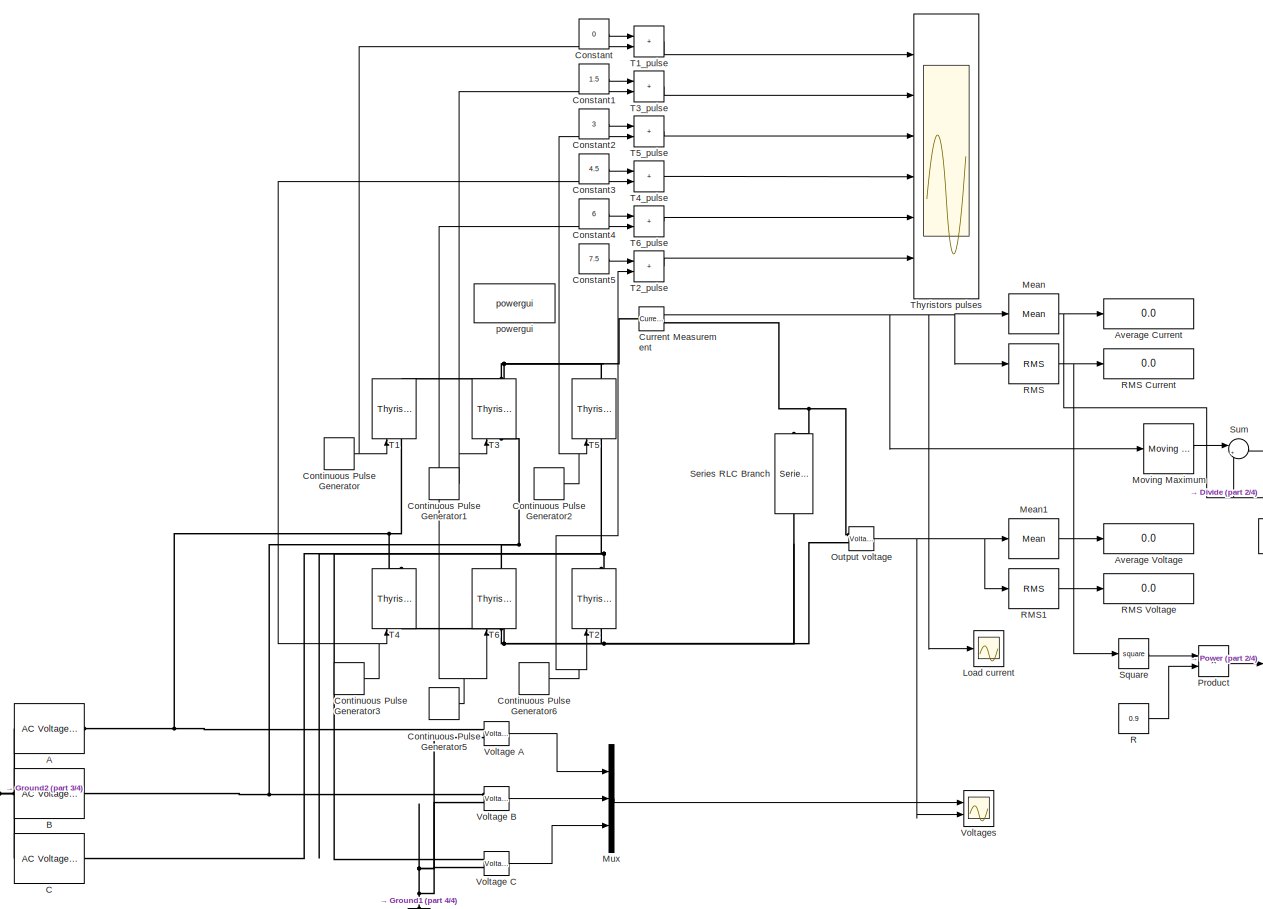
[diagram: root canvas - part 1/4, most of the canvas]
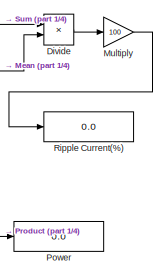
[diagram: root canvas - part 2/4, middle right region]
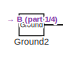
[diagram: root canvas - part 3/4, bottom left region]
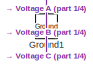
[diagram: root canvas - part 4/4, bottom center region]
MODEL slx_700b38ce89a7
KIND model
CONFIG AbsTol = auto
CONFIG EnableMultiTasking = off
CONFIG FixedStep = auto
CONFIG MaxStep = auto
CONFIG MinStep = auto
CONFIG RelTol = 1e-3
CONFIG SampleTimeConstraint = Unconstrained
CONFIG Solver = VariableStepAuto
CONFIG SolverName = VariableStepAuto
CONFIG StartTime = 0.0
CONFIG StopTime = 0.5
BLOCK [Reference] A  REF=powerlib/Electrical
Sources/AC Voltage Source
  NameLocation = top
  Ports = [0, 0, 0, 0, 0, 1, 1]
  SourceBlock = powerlib/Electrical\nSources/AC Voltage Source
  SourceProductBaseCode = PS
  SourceType = AC Voltage Source
BLOCK [Display] Average Current
  Decimation = 1
  Ports = [1]
BLOCK [Display] Average Voltage
  Decimation = 1
  Ports = [1]
BLOCK [Reference] B  REF=powerlib/Electrical
Sources/AC Voltage Source
  NameLocation = top
  Ports = [0, 0, 0, 0, 0, 1, 1]
  SourceBlock = powerlib/Electrical\nSources/AC Voltage Source
  SourceProductBaseCode = PS
  SourceType = AC Voltage Source
BLOCK [Reference] C  REF=powerlib/Electrical
Sources/AC Voltage Source
  NameLocation = top
  Ports = [0, 0, 0, 0, 0, 1, 1]
  SourceBlock = powerlib/Electrical\nSources/AC Voltage Source
  SourceProductBaseCode = PS
  SourceType = AC Voltage Source
BLOCK [Constant] Constant
  Value = 0
BLOCK [Constant] Constant1
  Value = 1.5
BLOCK [Constant] Constant2
  Value = 3
BLOCK [Constant] Constant3
  Value = 4.5
BLOCK [Constant] Constant4
  Value = 6
BLOCK [Constant] Constant5
  Value = 7.5
BLOCK [DiscretePulseGenerator] Continuous Pulse Generator
  Period = 1/60
  PhaseDelay = 0.23/60
  Ports = [0, 1]
  PulseType = Time based
  PulseWidth = 100/3
BLOCK [DiscretePulseGenerator] Continuous Pulse Generator1
  Period = 1/60
  PhaseDelay = 0.563/60
  Ports = [0, 1]
  PulseType = Time based
  PulseWidth = 100/3
BLOCK [DiscretePulseGenerator] Continuous Pulse Generator2
  Period = 1/60
  PhaseDelay = -0.103/60
  Ports = [0, 1]
  PulseType = Time based
  PulseWidth = 100/3
BLOCK [DiscretePulseGenerator] Continuous Pulse Generator3
  Period = 1/60
  PhaseDelay = 0.73/60
  Ports = [0, 1]
  PulseType = Time based
  PulseWidth = 100/3
BLOCK [DiscretePulseGenerator] Continuous Pulse Generator5
  Period = 1/60
  PhaseDelay = 0.063/60
  Ports = [0, 1]
  PulseType = Time based
  PulseWidth = 100/3
BLOCK [DiscretePulseGenerator] Continuous Pulse Generator6
  Period = 1/60
  PhaseDelay = 0.397/60
  Ports = [0, 1]
  PulseType = Time based
  PulseWidth = 100/3
BLOCK [Reference] Current Measurement  REF=powerlib/Measurements/Current Measurement
  Ports = [0, 1, 0, 0, 0, 1, 1]
  SourceBlock = powerlib/Measurements/Current Measurement
  SourceProductBaseCode = PS
  SourceType = Current Measurement
  UserDataPersistent = on
BLOCK [Product] Divide
  Inputs = */
  Ports = [2, 1]
BLOCK [Reference] Ground1  REF=powerlib/Elements/Ground
  NameLocation = right
  Ports = [0, 0, 0, 0, 0, 1]
  SourceBlock = powerlib/Elements/Ground
  SourceProductBaseCode = PS
  SourceType = Ground
BLOCK [Reference] Ground2  REF=powerlib/Elements/Ground
  Ports = [0, 0, 0, 0, 0, 1]
  SourceBlock = powerlib/Elements/Ground
  SourceProductBaseCode = PS
  SourceType = Ground
BLOCK [Scope] Load current
  Floating = off
  NumInputPorts = 1
  Ports = [1]
  ScopeSpecificationString = Simulink.scopes.TimeScopeBlockCfg('CurrentConfiguration', extmgr.ConfigurationSet(extmgr.Configuration('Core','General UI',true,'FigureColor',[1 1 1]),extmgr.Configuration('Core','Source UI',true),extmgr.Configuration('Sources','WiredSimulink',true),extmgr.Configuration('Visuals','Time Domain',true,'SerializedDisplays',{struct('MinYLimReal','-44.84912','MaxYLimReal','403.64211','YLabelReal','','Mi...<+1690ch>
BLOCK [Reference] Mean  REF=powerlib_meascontrol/Measurements/Mean
  Ports = [1, 1]
  SourceBlock = powerlib_meascontrol/Measurements/Mean
  SourceProductBaseCode = PS
  SourceType = Mean
BLOCK [Reference] Mean1  REF=powerlib_meascontrol/Measurements/Mean
  Ports = [1, 1]
  SourceBlock = powerlib_meascontrol/Measurements/Mean
  SourceProductBaseCode = PS
  SourceType = Mean
BLOCK [Reference] Moving Maximum  REF=dspstat3/Moving
Maximum
  Ports = [1, 1]
  SourceBlock = dspstat3/Moving\nMaximum
  SourceProductBaseCode = DS
  SourceType = dsp.MovingMaximum
BLOCK [Gain] Multiply
  Gain = 100
BLOCK [Mux] Mux
  DisplayOption = bar
  Inputs = 3
  Ports = [3, 1]
BLOCK [Reference] Output voltage  REF=powerlib/Measurements/Voltage Measurement
  Ports = [0, 1, 0, 0, 0, 2]
  SourceBlock = powerlib/Measurements/Voltage Measurement
  SourceProductBaseCode = PS
  SourceType = Voltage Measurement
  UserDataPersistent = on
BLOCK [Display] Power
  Decimation = 1
  Ports = [1]
BLOCK [Product] Product
  Ports = [2, 1]
BLOCK [Constant] R
  Value = 0.9
BLOCK [Reference] RMS  REF=powerlib_meascontrol/Measurements/RMS
  Ports = [1, 1]
  SourceBlock = powerlib_meascontrol/Measurements/RMS
  SourceProductBaseCode = PS
  SourceType = RMS
BLOCK [Display] RMS Current
  Decimation = 1
  Ports = [1]
BLOCK [Display] RMS Voltage
  Decimation = 1
  Ports = [1]
BLOCK [Reference] RMS1  REF=powerlib_meascontrol/Measurements/RMS
  Ports = [1, 1]
  SourceBlock = powerlib_meascontrol/Measurements/RMS
  SourceProductBaseCode = PS
  SourceType = RMS
BLOCK [Display] Ripple Current(%)
  Decimation = 1
  Ports = [1]
BLOCK [Reference] Series RLC Branch  REF=powerlib/Elements/Series RLC Branch
  NameLocation = right
  Ports = [0, 0, 0, 0, 0, 1, 1]
  SourceBlock = powerlib/Elements/Series RLC Branch
  SourceProductBaseCode = PS
  SourceType = Series RLC Branch
BLOCK [Math] Square
  Operator = square
  Ports = [1, 1]
BLOCK [Sum] Sum
  Inputs = |+-
  Ports = [2, 1]
BLOCK [Reference] T1  REF=powerlib/Power
Electronics/Thyristor
  NameLocation = right
  Ports = [1, 1, 0, 0, 0, 1, 1]
  SourceBlock = powerlib/Power\nElectronics/Thyristor
  SourceProductBaseCode = PS
  SourceType = Thyristor
BLOCK [Sum] T1_pulse
  IconShape = rectangular
  NameLocation = right
  Ports = [2, 1]
BLOCK [Reference] T2  REF=powerlib/Power
Electronics/Thyristor
  NameLocation = right
  Ports = [1, 1, 0, 0, 0, 1, 1]
  SourceBlock = powerlib/Power\nElectronics/Thyristor
  SourceProductBaseCode = PS
  SourceType = Thyristor
BLOCK [Sum] T2_pulse
  IconShape = rectangular
  NameLocation = right
  Ports = [2, 1]
BLOCK [Reference] T3  REF=powerlib/Power
Electronics/Thyristor
  NameLocation = right
  Ports = [1, 1, 0, 0, 0, 1, 1]
  SourceBlock = powerlib/Power\nElectronics/Thyristor
  SourceProductBaseCode = PS
  SourceType = Thyristor
BLOCK [Sum] T3_pulse
  IconShape = rectangular
  NameLocation = right
  Ports = [2, 1]
BLOCK [Reference] T4  REF=powerlib/Power
Electronics/Thyristor
  NameLocation = right
  Ports = [1, 1, 0, 0, 0, 1, 1]
  SourceBlock = powerlib/Power\nElectronics/Thyristor
  SourceProductBaseCode = PS
  SourceType = Thyristor
BLOCK [Sum] T4_pulse
  IconShape = rectangular
  NameLocation = right
  Ports = [2, 1]
BLOCK [Reference] T5  REF=powerlib/Power
Electronics/Thyristor
  NameLocation = right
  Ports = [1, 1, 0, 0, 0, 1, 1]
  SourceBlock = powerlib/Power\nElectronics/Thyristor
  SourceProductBaseCode = PS
  SourceType = Thyristor
BLOCK [Sum] T5_pulse
  IconShape = rectangular
  NameLocation = right
  Ports = [2, 1]
BLOCK [Reference] T6  REF=powerlib/Power
Electronics/Thyristor
  NameLocation = right
  Ports = [1, 1, 0, 0, 0, 1, 1]
  SourceBlock = powerlib/Power\nElectronics/Thyristor
  SourceProductBaseCode = PS
  SourceType = Thyristor
BLOCK [Sum] T6_pulse
  IconShape = rectangular
  NameLocation = right
  Ports = [2, 1]
BLOCK [Scope] Thyristors pulses
  Floating = off
  NameLocation = right
  NumInputPorts = 6
  Ports = [6]
  ScopeSpecificationString = Simulink.scopes.TimeScopeBlockCfg('CurrentConfiguration', extmgr.ConfigurationSet(extmgr.Configuration('Core','General UI',true,'FigureColor',[1 1 1]),extmgr.Configuration('Core','Source UI',true),extmgr.Configuration('Sources','WiredSimulink',true,'DataLoggingVariableName','ScopeData2'),extmgr.Configuration('Visuals','Time Domain',true,'PlotType','Line','SerializedDisplays',{struct('MinYLimReal',...<+2422ch>
BLOCK [Reference] Voltage A  REF=powerlib/Measurements/Voltage Measurement
  Ports = [0, 1, 0, 0, 0, 2]
  SourceBlock = powerlib/Measurements/Voltage Measurement
  SourceProductBaseCode = PS
  SourceType = Voltage Measurement
  UserDataPersistent = on
BLOCK [Reference] Voltage B  REF=powerlib/Measurements/Voltage Measurement
  Ports = [0, 1, 0, 0, 0, 2]
  SourceBlock = powerlib/Measurements/Voltage Measurement
  SourceProductBaseCode = PS
  SourceType = Voltage Measurement
  UserDataPersistent = on
BLOCK [Reference] Voltage C  REF=powerlib/Measurements/Voltage Measurement
  Ports = [0, 1, 0, 0, 0, 2]
  SourceBlock = powerlib/Measurements/Voltage Measurement
  SourceProductBaseCode = PS
  SourceType = Voltage Measurement
  UserDataPersistent = on
BLOCK [Scope] Voltages
  Floating = off
  NumInputPorts = 2
  Ports = [2]
  ScopeSpecificationString = Simulink.scopes.TimeScopeBlockCfg('CurrentConfiguration', extmgr.ConfigurationSet(extmgr.Configuration('Core','General UI',true,'FigureColor',[1 1 1]),extmgr.Configuration('Core','Source UI',true),extmgr.Configuration('Sources','WiredSimulink',true,'DataLoggingVariableName','ScopeData1'),extmgr.Configuration('Visuals','Time Domain',true,'SerializedDisplays',{struct('MinYLimReal','-402.43079','MaxY...<+2265ch>
BLOCK [Reference] powergui  REF=powerlib/powergui
  Ports = []
  Priority = 1
  SourceBlock = powerlib/powergui
  SourceProductBaseCode = PS
  SourceType = PSB option menu block
LINE Constant1:1 -> T3_pulse:1
LINE Constant2:1 -> T5_pulse:1
LINE Constant3:1 -> T4_pulse:1
LINE Constant4:1 -> T6_pulse:1
LINE Constant5:1 -> T2_pulse:1
LINE Constant:1 -> T1_pulse:1
NET Continuous Pulse Generator1:1 -> T3:1, T3_pulse:2
NET Continuous Pulse Generator2:1 -> T5:1, T5_pulse:2
NET Continuous Pulse Generator3:1 -> T4:1, T4_pulse:2
NET Continuous Pulse Generator5:1 -> T6:1, T6_pulse:2
NET Continuous Pulse Generator6:1 -> T2:1, T2_pulse:2
NET Continuous Pulse Generator:1 -> T1:1, T1_pulse:2
NET Current Measurement:1 -> Load current:1, Mean:1, Moving Maximum:1, RMS:1
LINE Divide:1 -> Multiply:1
LINE Mean1:1 -> Average Voltage:1
NET Mean:1 -> Average Current:1, Divide:2, Sum:2
LINE Moving Maximum:1 -> Sum:1
LINE Multiply:1 -> Ripple Current(%):1
LINE Mux:1 -> Voltages:1
NET Output voltage:1 -> Mean1:1, RMS1:1, Voltages:2
LINE Product:1 -> Power:1
LINE R:1 -> Product:2
LINE RMS1:1 -> RMS Voltage:1
NET RMS:1 -> RMS Current:1, Square:1
LINE Square:1 -> Product:1
LINE Sum:1 -> Divide:1
LINE T1_pulse:1 -> Thyristors pulses:1
LINE T2_pulse:1 -> Thyristors pulses:6
LINE T3_pulse:1 -> Thyristors pulses:2
LINE T4_pulse:1 -> Thyristors pulses:4
LINE T5_pulse:1 -> Thyristors pulses:3
LINE T6_pulse:1 -> Thyristors pulses:5
LINE Voltage A:1 -> Mux:1
LINE Voltage B:1 -> Mux:2
LINE Voltage C:1 -> Mux:3
PNET net1: A:LConn1 -- B:LConn1 -- C:LConn1 -- Ground2:LConn1
PNET net2: A:RConn1 -- T1:LConn1 -- T4:RConn1 -- Voltage A:LConn1
PNET net3: B:RConn1 -- T3:LConn1 -- T6:RConn1 -- Voltage B:LConn1
PNET net4: C:RConn1 -- T2:RConn1 -- T5:LConn1 -- Voltage C:LConn1
PNET net5: Current Measurement:LConn1 -- T1:RConn1 -- T3:RConn1 -- T5:RConn1
PNET net6: Current Measurement:RConn1 -- Output voltage:LConn1 -- Series RLC Branch:RConn1
PNET net7: Ground1:LConn1 -- Voltage A:LConn2 -- Voltage B:LConn2 -- Voltage C:LConn2
PNET net8: Output voltage:LConn2 -- Series RLC Branch:LConn1 -- T2:LConn1 -- T4:LConn1 -- T6:LConn1
note: NET lines group one-source signal fan-out (src -> all destinations, sorted); 1:1 wires keep LINE; PNET lines group multi-terminal physical nets as a canonical sorted terminal list (undirected conserving connections); 2-terminal nets keep the pairwise PLINE form
